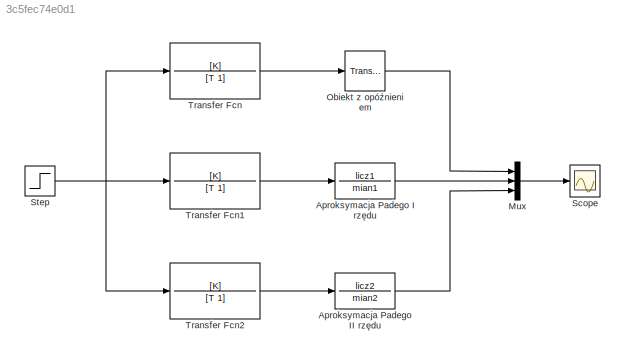
MODEL slx_3c5fec74e0d1
KIND model
CONFIG AbsTol = auto
CONFIG EnableMultiTasking = off
CONFIG FixedStep = auto
CONFIG MaxStep = auto
CONFIG MinStep = auto
CONFIG RelTol = 1e-3
CONFIG SampleTimeConstraint = Unconstrained
CONFIG Solver = VariableStepAuto
CONFIG SolverName = VariableStepAuto
CONFIG StartTime = 0.0
CONFIG StopTime = 5
BLOCK [TransferFcn] Aproksymacja Padego I rzędu
  Denominator = mian1
  Numerator = licz1
BLOCK [TransferFcn] Aproksymacja Padego II rzędu
  Denominator = mian2
  Numerator = licz2
BLOCK [Mux] Mux
  DisplayOption = bar
  Inputs = 3
  Ports = [3, 1]
BLOCK [TransportDelay] Obiekt z opóźnieniem
  Ports = [1, 1]
BLOCK [Scope] Scope
  Floating = off
  NumInputPorts = 1
  Ports = [1]
  ScopeSpecificationString = Simulink.scopes.TimeScopeBlockCfg('CurrentConfiguration', extmgr.ConfigurationSet(extmgr.Configuration('Core','General UI',true),extmgr.Configuration('Core','Source UI',true),extmgr.Configuration('Sources','WiredSimulink',true),extmgr.Configuration('Visuals','Time Domain',true,'SerializedDisplays',{struct('MinYLimReal','-0.26247','MaxYLimReal','1.11995','YLabelReal','','MinYLimMag','0.00000','MaxY...<+1429ch>
BLOCK [Step] Step
  SampleTime = 0
  Time = 0
BLOCK [TransferFcn] Transfer Fcn
  Denominator = [T 1]
  Numerator = [K]
BLOCK [TransferFcn] Transfer Fcn1
  Denominator = [T 1]
  Numerator = [K]
BLOCK [TransferFcn] Transfer Fcn2
  Denominator = [T 1]
  Numerator = [K]
LINE Aproksymacja Padego I rzędu:1 -> Mux:2
LINE Aproksymacja Padego II rzędu:1 -> Mux:3
LINE Mux:1 -> Scope:1
LINE Obiekt z opóźnieniem:1 -> Mux:1
NET Step:1 -> Transfer Fcn1:1, Transfer Fcn2:1, Transfer Fcn:1
LINE Transfer Fcn1:1 -> Aproksymacja Padego I rzędu:1
LINE Transfer Fcn2:1 -> Aproksymacja Padego II rzędu:1
LINE Transfer Fcn:1 -> Obiekt z opóźnieniem:1
note: NET lines group one-source signal fan-out (src -> all destinations, sorted); 1:1 wires keep LINE
